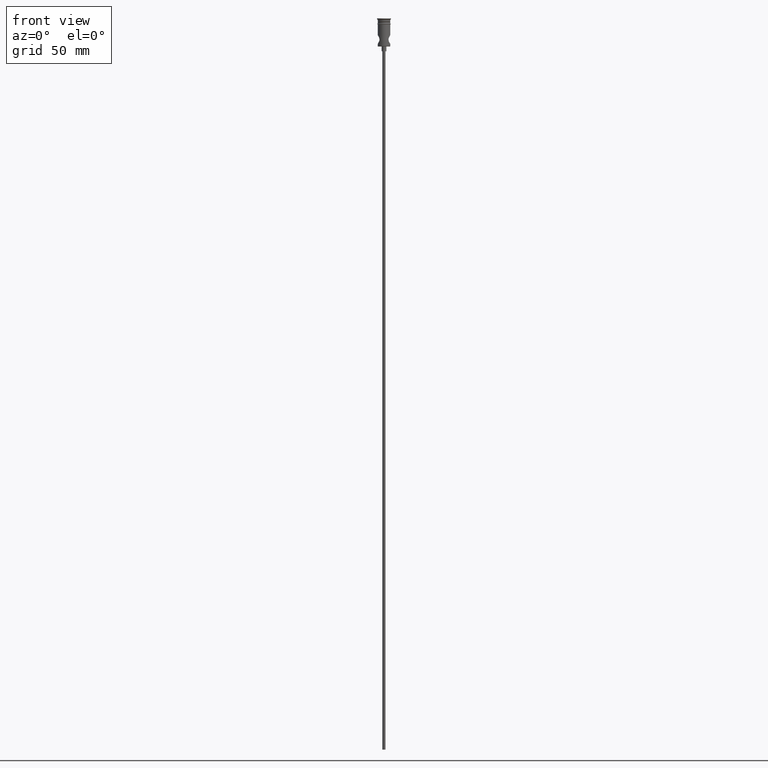
[diagram: clean part render]
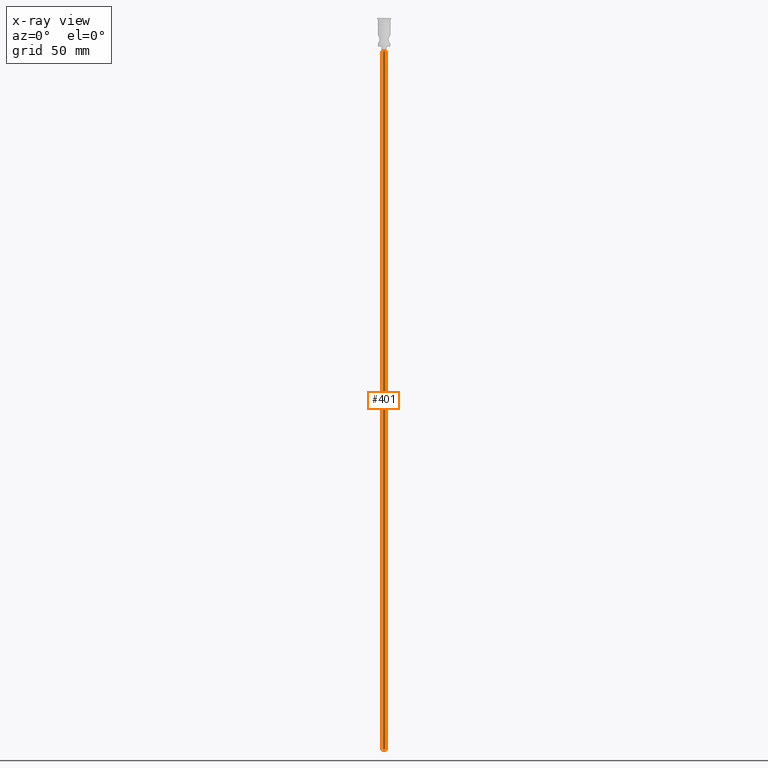
[diagram: x-ray — body ghosted, one internal face saturated and labeled with its STEP entity id]
A machine part, front view, then the same camera in x-ray: the body is ghosted and one INTERNAL B-rep face — a face not visible from any outside direction — is saturated and labeled: STEP entity #401.
In plain terms, the highlighted cylindrical surface (edge-blend (fillet) strip) has radius 1 mm, axis along (-0, -0, 1).
Its self-contained STEP definition (entity closure, byte-faithful):
#57 = CARTESIAN_POINT ( 'NONE',  ( 0.9999999999999997780, 0.000000000000000000, -20.99999999999999645 ) ) ;
#65 = CARTESIAN_POINT ( 'NONE',  ( -0.9999999999999997780, 1.224646799147352961E-16, -468.0000000000000000 ) ) ;
#93 = CIRCLE ( 'NONE', #238, 0.9999999999999997780 ) ;
#123 = DIRECTION ( 'NONE',  ( -0.000000000000000000, -0.000000000000000000, 1.000000000000000000 ) ) ;
#238 = AXIS2_PLACEMENT_3D ( 'NONE', #1340, #481, #690 ) ;
#260 = CARTESIAN_POINT ( 'NONE',  ( 0.9999999999999997780, 0.000000000000000000, -468.0000000000000000 ) ) ;
#291 = VECTOR ( 'NONE', #123, 1000.000000000000000 ) ;
#341 = CARTESIAN_POINT ( 'NONE',  ( 0.000000000000000000, 0.000000000000000000, -468.0000000000000000 ) ) ;
#401 = ADVANCED_FACE ( 'NONE', ( #1338 ), #1210, .T. ) ;
#403 = DIRECTION ( 'NONE',  ( -1.000000000000000000, 0.000000000000000000, 0.000000000000000000 ) ) ;
#441 = CARTESIAN_POINT ( 'NONE',  ( -0.9999999999999997780, 1.224646799147352961E-16, -468.0000000000000000 ) ) ;
#461 = EDGE_CURVE ( 'NONE', #1257, #962, #561, .T. ) ;
#481 = DIRECTION ( 'NONE',  ( 0.000000000000000000, 0.000000000000000000, -1.000000000000000000 ) ) ;
#561 = LINE ( 'NONE', #260, #291 ) ;
#573 = ORIENTED_EDGE ( 'NONE', *, *, #1232, .F. ) ;
#614 = VECTOR ( 'NONE', #1136, 1000.000000000000000 ) ;
#647 = VERTEX_POINT ( 'NONE', #441 ) ;
#656 = DIRECTION ( 'NONE',  ( -0.000000000000000000, -0.000000000000000000, 1.000000000000000000 ) ) ;
#690 = DIRECTION ( 'NONE',  ( -1.000000000000000000, 0.000000000000000000, 0.000000000000000000 ) ) ;
#797 = DIRECTION ( 'NONE',  ( 1.000000000000000000, 0.000000000000000000, 0.000000000000000000 ) ) ;
#846 = VERTEX_POINT ( 'NONE', #1284 ) ;
#855 = AXIS2_PLACEMENT_3D ( 'NONE', #341, #656, #797 ) ;
#915 = ORIENTED_EDGE ( 'NONE', *, *, #1406, .T. ) ;
#937 = CARTESIAN_POINT ( 'NONE',  ( 0.000000000000000000, 0.000000000000000000, -20.99999999999999645 ) ) ;
#962 = VERTEX_POINT ( 'NONE', #57 ) ;
#1000 = ORIENTED_EDGE ( 'NONE', *, *, #461, .F. ) ;
#1026 = DIRECTION ( 'NONE',  ( 0.000000000000000000, 0.000000000000000000, -1.000000000000000000 ) ) ;
#1057 = CIRCLE ( 'NONE', #1268, 0.9999999999999997780 ) ;
#1066 = EDGE_CURVE ( 'NONE', #846, #962, #1057, .T. ) ;
#1128 = CARTESIAN_POINT ( 'NONE',  ( 0.9999999999999997780, 0.000000000000000000, -468.0000000000000000 ) ) ;
#1136 = DIRECTION ( 'NONE',  ( -0.000000000000000000, -0.000000000000000000, 1.000000000000000000 ) ) ;
#1150 = ORIENTED_EDGE ( 'NONE', *, *, #1066, .T. ) ;
#1173 = EDGE_LOOP ( 'NONE', ( #573, #915, #1150, #1000 ) ) ;
#1210 = CYLINDRICAL_SURFACE ( 'NONE', #855, 0.9999999999999997780 ) ;
#1232 = EDGE_CURVE ( 'NONE', #647, #1257, #93, .T. ) ;
#1257 = VERTEX_POINT ( 'NONE', #1128 ) ;
#1260 = LINE ( 'NONE', #65, #614 ) ;
#1268 = AXIS2_PLACEMENT_3D ( 'NONE', #937, #1026, #403 ) ;
#1284 = CARTESIAN_POINT ( 'NONE',  ( -0.9999999999999997780, 1.224646799147352961E-16, -20.99999999999999645 ) ) ;
#1338 = FACE_OUTER_BOUND ( 'NONE', #1173, .T. ) ;
#1340 = CARTESIAN_POINT ( 'NONE',  ( 0.000000000000000000, 0.000000000000000000, -468.0000000000000000 ) ) ;
#1406 = EDGE_CURVE ( 'NONE', #647, #846, #1260, .T. ) ;